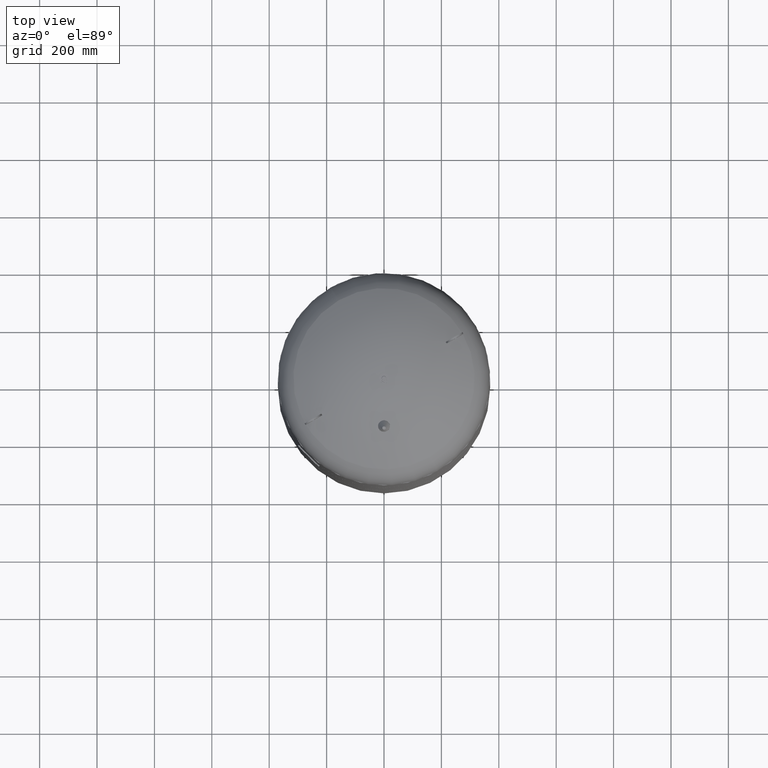
[diagram: clean part render]
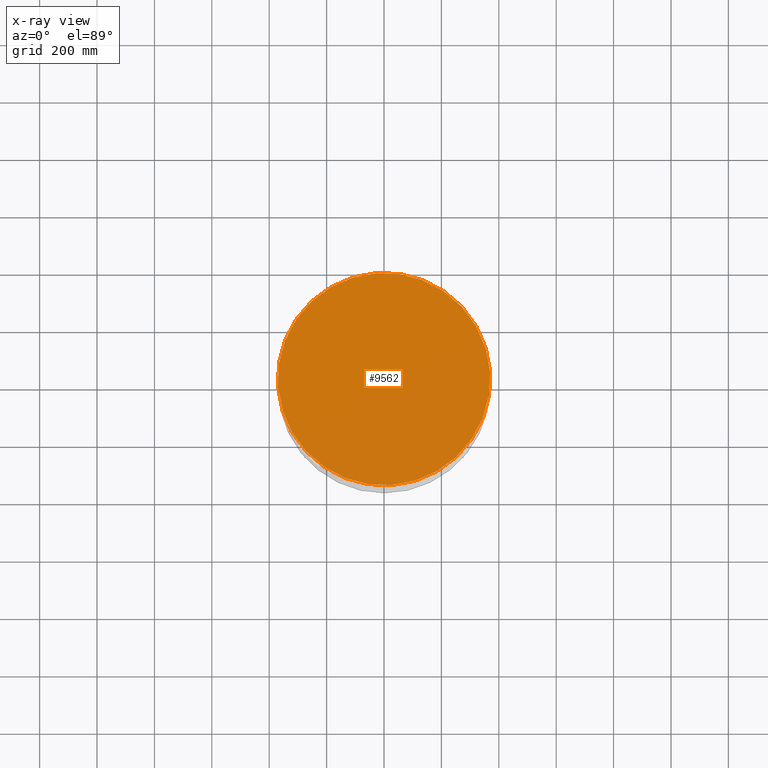
[diagram: x-ray — body ghosted, one internal face saturated and labeled with its STEP entity id]
A machine part, top view, then the same camera in x-ray: the body is ghosted and one INTERNAL B-rep face — a face not visible from any outside direction — is saturated and labeled: STEP entity #9562.
In plain terms, the highlighted planar face has unit normal (0, 0, -1).
Its self-contained STEP definition (entity closure, byte-faithful):
#8830=CARTESIAN_POINT('',(320.429399400242350,184.999999999999970,2106.0));
#8831=VERTEX_POINT('',#8830);
#8840=CARTESIAN_POINT('',(-320.429399400242350,-184.999999999999970,2106.0));
#8841=VERTEX_POINT('',#8840);
#8842=CARTESIAN_POINT('',(-2.685504E-015,-4.164022E-014,2106.0));
#8843=DIRECTION('',(-1.060575E-016,-6.123234E-017,-1.000000000000000));
#8844=DIRECTION('',(0.866025403784439,0.500000000000000,-1.224647E-016));
#8845=AXIS2_PLACEMENT_3D('',#8842,#8843,#8844);
#8846=CIRCLE('',#8845,370.0);
#8847=EDGE_CURVE('',#8841,#8831,#8846,.T.);
#9543=CARTESIAN_POINT('',(-2.685504E-015,-4.164022E-014,2106.0));
#9544=DIRECTION('',(-1.060575E-016,-6.123234E-017,-1.000000000000000));
#9545=DIRECTION('',(0.866025403784439,0.500000000000000,-1.224647E-016));
#9546=AXIS2_PLACEMENT_3D('',#9543,#9544,#9545);
#9547=CIRCLE('',#9546,370.0);
#9548=EDGE_CURVE('',#8831,#8841,#9547,.T.);
#9553=CARTESIAN_POINT('',(160.214699700121200,92.499999999999957,2106.0));
#9554=DIRECTION('',(0.0,0.0,-1.0));
#9555=DIRECTION('',(0.500000000000000,-0.866025403784439,0.0));
#9556=AXIS2_PLACEMENT_3D('',#9553,#9554,#9555);
#9557=PLANE('',#9556);
#9558=ORIENTED_EDGE('',*,*,#9548,.T.);
#9559=ORIENTED_EDGE('',*,*,#8847,.T.);
#9560=EDGE_LOOP('',(#9558,#9559));
#9561=FACE_OUTER_BOUND('',#9560,.T.);
#9562=ADVANCED_FACE('',(#9561),#9557,.T.);